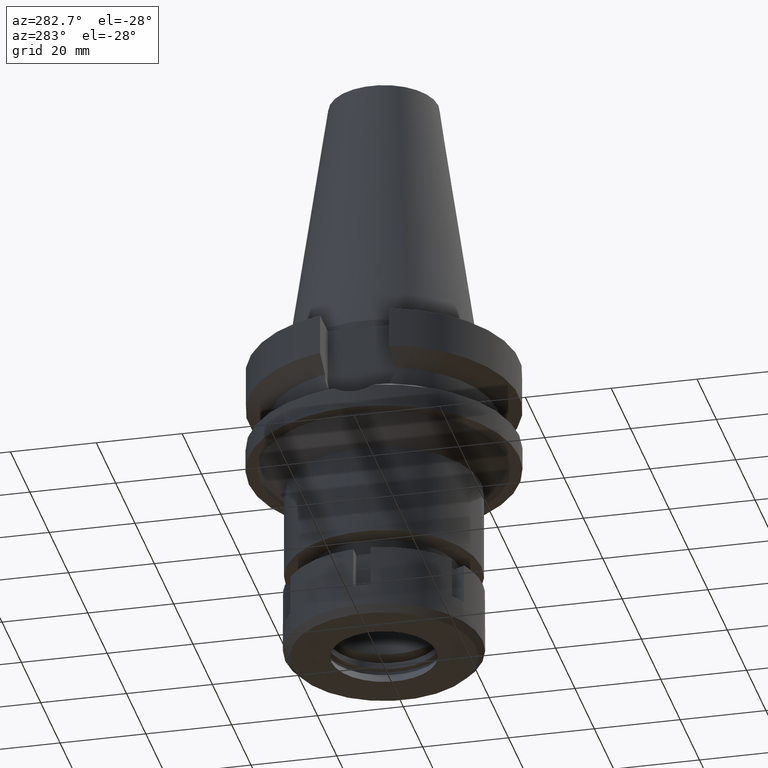
[diagram: clean part render]
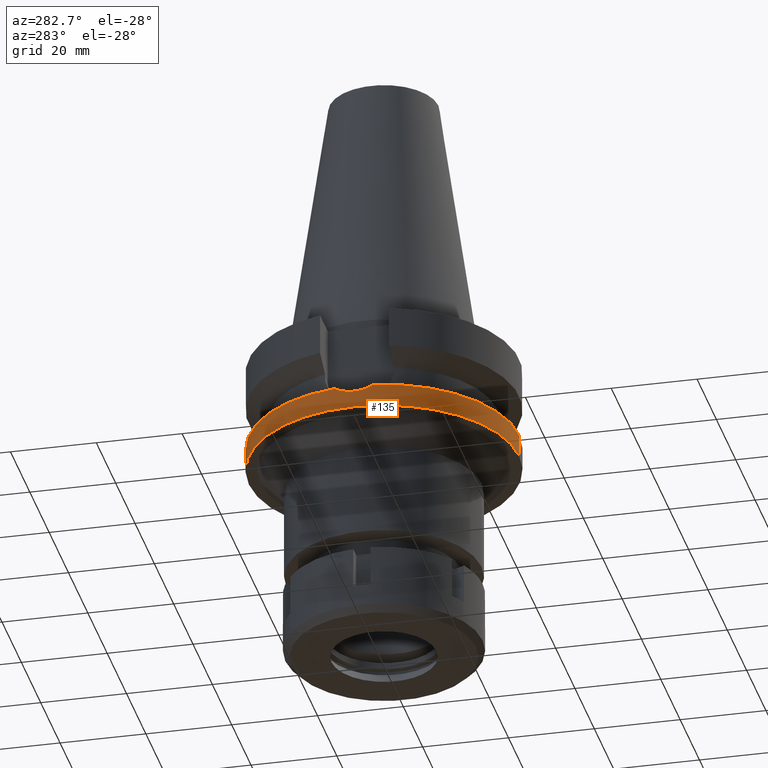
[diagram: same view with one face highlighted and labeled with its STEP entity id]
A machine part, auxiliary view. The second image highlights one B-rep face of the part: STEP entity #135.
In plain terms, the highlighted cylindrical surface (partial cylindrical patch) has radius 31.5 mm, axis along (0, 0, -1).
Its self-contained STEP definition (entity closure, byte-faithful):
#11 = EDGE_CURVE ( 'NONE', #2772, #1759, #1786, .T. ) ;
#12 = EDGE_LOOP ( 'NONE', ( #1390, #886, #1716, #1158, #3079, #2810 ) ) ;
#28 = CARTESIAN_POINT ( 'NONE',  ( 0.0000000000000000000, 31.50000000000000000, -21.63449434733000132 ) ) ;
#55 = DIRECTION ( 'NONE',  ( 0.0000000000000000000, -1.105773104655000034E-13, -1.000000000000000000 ) ) ;
#135 = ADVANCED_FACE ( 'NONE', ( #2776 ), #2813, .T. ) ;
#136 = CARTESIAN_POINT ( 'NONE',  ( -31.37894136415569335, 2.758863631449664844, -22.51306821944808689 ) ) ;
#155 = CARTESIAN_POINT ( 'NONE',  ( -31.42499671940192485, -2.173479871765644500, -22.70131995672949898 ) ) ;
#184 = CARTESIAN_POINT ( 'NONE',  ( 0.0000000000000000000, -31.50000000000000000, -27.00000000000000000 ) ) ;
#195 = CARTESIAN_POINT ( 'NONE',  ( 0.0000000000000000000, 2.106637423893000012E-14, -27.00000000000000000 ) ) ;
#260 = LINE ( 'NONE', #1668, #2606 ) ;
#267 = DIRECTION ( 'NONE',  ( 0.0000000000000000000, 1.000000000000000000, 0.0000000000000000000 ) ) ;
#367 = CARTESIAN_POINT ( 'NONE',  ( 0.0000000000000000000, 2.106637423893000012E-14, 72.01999999999999602 ) ) ;
#388 = CARTESIAN_POINT ( 'NONE',  ( 0.0000000000000000000, 31.50000000000000000, -21.63449434733000132 ) ) ;
#397 = AXIS2_PLACEMENT_3D ( 'NONE', #1191, #2252, #655 ) ;
#402 = CARTESIAN_POINT ( 'NONE',  ( -31.49254817246030669, -0.7824343147850743030, -22.97160126998584317 ) ) ;
#427 = DIRECTION ( 'NONE',  ( 0.0000000000000000000, 0.0000000000000000000, -1.000000000000000000 ) ) ;
#447 = CARTESIAN_POINT ( 'NONE',  ( -31.41630068311783575, -2.294990303374444984, -22.66593676115201461 ) ) ;
#470 = CARTESIAN_POINT ( 'NONE',  ( -31.28475554409394022, -3.750420082854581061, -22.12778373751610062 ) ) ;
#655 = DIRECTION ( 'NONE',  ( -0.9898094849552905306, 0.1423979757318985240, 0.0000000000000000000 ) ) ;
#695 = CARTESIAN_POINT ( 'NONE',  ( -31.43649054899053752, -2.003082981853941291, -22.74794518897451212 ) ) ;
#734 = CARTESIAN_POINT ( 'NONE',  ( -31.17899877608999759, 4.485536235554000051, -21.63449434733000132 ) ) ;
#743 = CARTESIAN_POINT ( 'NONE',  ( -31.23221634387819279, 4.115620489982426022, -21.88272112330877306 ) ) ;
#886 = ORIENTED_EDGE ( 'NONE', *, *, #2090, .T. ) ;
#953 = CARTESIAN_POINT ( 'NONE',  ( -31.49988075799867815, -0.3932938145174566524, -22.99952906081513149 ) ) ;
#968 = CARTESIAN_POINT ( 'NONE',  ( -31.41200430603705129, 2.353176799737126679, -22.64842219027091730 ) ) ;
#1008 = CARTESIAN_POINT ( 'NONE',  ( -31.40242035844689639, 2.478036592741315047, -22.60933024864130303 ) ) ;
#1081 = VERTEX_POINT ( 'NONE', #1703 ) ;
#1098 = AXIS2_PLACEMENT_3D ( 'NONE', #2500, #427, #1193 ) ;
#1138 = EDGE_CURVE ( 'NONE', #1081, #1759, #260, .T. ) ;
#1158 = ORIENTED_EDGE ( 'NONE', *, *, #1138, .F. ) ;
#1191 = CARTESIAN_POINT ( 'NONE',  ( 0.0000000000000000000, 0.0000000000000000000, -21.63449434733000132 ) ) ;
#1193 = DIRECTION ( 'NONE',  ( 0.0000000000000000000, -1.000000000000000000, 0.0000000000000000000 ) ) ;
#1363 = VERTEX_POINT ( 'NONE', #2838 ) ;
#1390 = ORIENTED_EDGE ( 'NONE', *, *, #1629, .T. ) ;
#1426 = DIRECTION ( 'NONE',  ( 0.0000000000000000000, 0.0000000000000000000, -1.000000000000000000 ) ) ;
#1499 = CARTESIAN_POINT ( 'NONE',  ( -31.41354641493284561, -2.332384000905989296, -22.65471317283292407 ) ) ;
#1513 = CARTESIAN_POINT ( 'NONE',  ( -31.17899877608999759, -4.485536235554000051, -21.63449434733000132 ) ) ;
#1547 = CARTESIAN_POINT ( 'NONE',  ( -31.41451779209811335, -2.319272271064519053, -22.65867282528911630 ) ) ;
#1601 = CIRCLE ( 'NONE', #397, 31.50000000000001421 ) ;
#1629 = EDGE_CURVE ( 'NONE', #3434, #2681, #1601, .T. ) ;
#1668 = CARTESIAN_POINT ( 'NONE',  ( 0.0000000000000000000, -31.50000000000000000, -21.63449434733000132 ) ) ;
#1703 = CARTESIAN_POINT ( 'NONE',  ( 0.0000000000000000000, -31.50000000000000000, -21.63449434733000132 ) ) ;
#1716 = ORIENTED_EDGE ( 'NONE', *, *, #11, .T. ) ;
#1726 = AXIS2_PLACEMENT_3D ( 'NONE', #367, #1426, #2523 ) ;
#1759 = VERTEX_POINT ( 'NONE', #184 ) ;
#1786 = CIRCLE ( 'NONE', #1899, 31.50000000000000000 ) ;
#1809 = B_SPLINE_CURVE_WITH_KNOTS ( 'NONE', 3,
 ( #2095, #743, #2578, #2363, #3216, #136, #2325, #1008, #2310, #3432, #968, #1851, #3197, #953, #402, #2645, #2881, #2608, #695, #155, #3474, #447, #1547, #1499, #1831, #470, #1513 ),
 .UNSPECIFIED., .F., .F.,
 ( 4, 2, 2, 1, 1, 2, 2, 2, 2, 2, 1, 1, 1, 2, 2, 4 ),
 ( 0.0000000000000000000, 0.1250000000000070499, 0.1875000000000104639, 0.2187500000000123235, 0.2343750000000130451, 0.2421875000000133504, 0.2500000000000136557, 0.5000000000000232037, 0.6250000000000278666, 0.6875000000000301981, 0.7187500000000311973, 0.7343750000000316414, 0.7421875000000317524, 0.7460937500000317524, 0.7500000000000317524, 1.000000000000000000 ),
 .UNSPECIFIED. ) ;
#1831 = CARTESIAN_POINT ( 'NONE',  ( -31.36267722272253167, -3.014176567365065118, -22.44730567393091292 ) ) ;
#1851 = CARTESIAN_POINT ( 'NONE',  ( -31.47150441655299602, 1.550750679857363146, -22.89093377991028078 ) ) ;
#1888 = CIRCLE ( 'NONE', #1098, 31.50000000000000000 ) ;
#1899 = AXIS2_PLACEMENT_3D ( 'NONE', #195, #2169, #267 ) ;
#1984 = DIRECTION ( 'NONE',  ( 0.0000000000000000000, 1.099151708819000049E-13, -1.000000000000000000 ) ) ;
#2090 = EDGE_CURVE ( 'NONE', #2681, #2772, #2279, .T. ) ;
#2095 = CARTESIAN_POINT ( 'NONE',  ( -31.17899877608999759, 4.485536235554000051, -21.63449434733000132 ) ) ;
#2169 = DIRECTION ( 'NONE',  ( 0.0000000000000000000, 0.0000000000000000000, 1.000000000000000000 ) ) ;
#2222 = VECTOR ( 'NONE', #1984, 1000.000000000000000 ) ;
#2241 = CARTESIAN_POINT ( 'NONE',  ( 0.0000000000000000000, 31.50000000000000000, -27.00000000000000000 ) ) ;
#2252 = DIRECTION ( 'NONE',  ( 0.0000000000000000000, 0.0000000000000000000, -1.000000000000000000 ) ) ;
#2279 = LINE ( 'NONE', #388, #2222 ) ;
#2310 = CARTESIAN_POINT ( 'NONE',  ( -31.40736225804058179, 2.414206323996446191, -22.62949227797436436 ) ) ;
#2325 = CARTESIAN_POINT ( 'NONE',  ( -31.39031131250046869, 2.628187298177653286, -22.55983422596485255 ) ) ;
#2363 = CARTESIAN_POINT ( 'NONE',  ( -31.33707847192030016, 3.201445230599579084, -22.33871180517460786 ) ) ;
#2500 = CARTESIAN_POINT ( 'NONE',  ( 0.0000000000000000000, 0.0000000000000000000, -21.63449434733000132 ) ) ;
#2523 = DIRECTION ( 'NONE',  ( 0.0000000000000000000, -1.000000000000000000, 0.0000000000000000000 ) ) ;
#2578 = CARTESIAN_POINT ( 'NONE',  ( -31.27838846380927151, 3.744638241578636784, -22.08718706897388273 ) ) ;
#2606 = VECTOR ( 'NONE', #55, 1000.000000000000000 ) ;
#2608 = CARTESIAN_POINT ( 'NONE',  ( -31.44532781230133978, -1.856703196135772282, -22.78359225527697873 ) ) ;
#2645 = CARTESIAN_POINT ( 'NONE',  ( -31.47072699418134434, -1.368170334982863778, -22.88533600626783127 ) ) ;
#2681 = VERTEX_POINT ( 'NONE', #28 ) ;
#2772 = VERTEX_POINT ( 'NONE', #2241 ) ;
#2776 = FACE_OUTER_BOUND ( 'NONE', #12, .T. ) ;
#2810 = ORIENTED_EDGE ( 'NONE', *, *, #2882, .F. ) ;
#2813 = CYLINDRICAL_SURFACE ( 'NONE', #1726, 31.50000000000000000 ) ;
#2838 = CARTESIAN_POINT ( 'NONE',  ( -31.17899877608999759, -4.485536235554000051, -21.63449434733000132 ) ) ;
#2881 = CARTESIAN_POINT ( 'NONE',  ( -31.46164955142648978, -1.563742733629703618, -22.84919402122302046 ) ) ;
#2882 = EDGE_CURVE ( 'NONE', #3434, #1363, #1809, .T. ) ;
#3079 = ORIENTED_EDGE ( 'NONE', *, *, #3130, .T. ) ;
#3130 = EDGE_CURVE ( 'NONE', #1081, #1363, #1888, .T. ) ;
#3197 = CARTESIAN_POINT ( 'NONE',  ( -31.50023391467116696, 0.7573065430328922432, -23.00092412718314350 ) ) ;
#3216 = CARTESIAN_POINT ( 'NONE',  ( -31.35488044599301460, 3.022543740769199516, -22.41338040374345653 ) ) ;
#3432 = CARTESIAN_POINT ( 'NONE',  ( -31.41060181520833439, 2.371771208670869768, -22.64270402108467195 ) ) ;
#3434 = VERTEX_POINT ( 'NONE', #734 ) ;
#3474 = CARTESIAN_POINT ( 'NONE',  ( -31.41895388234278030, -2.258557297388491314, -22.67674196858819968 ) ) ;